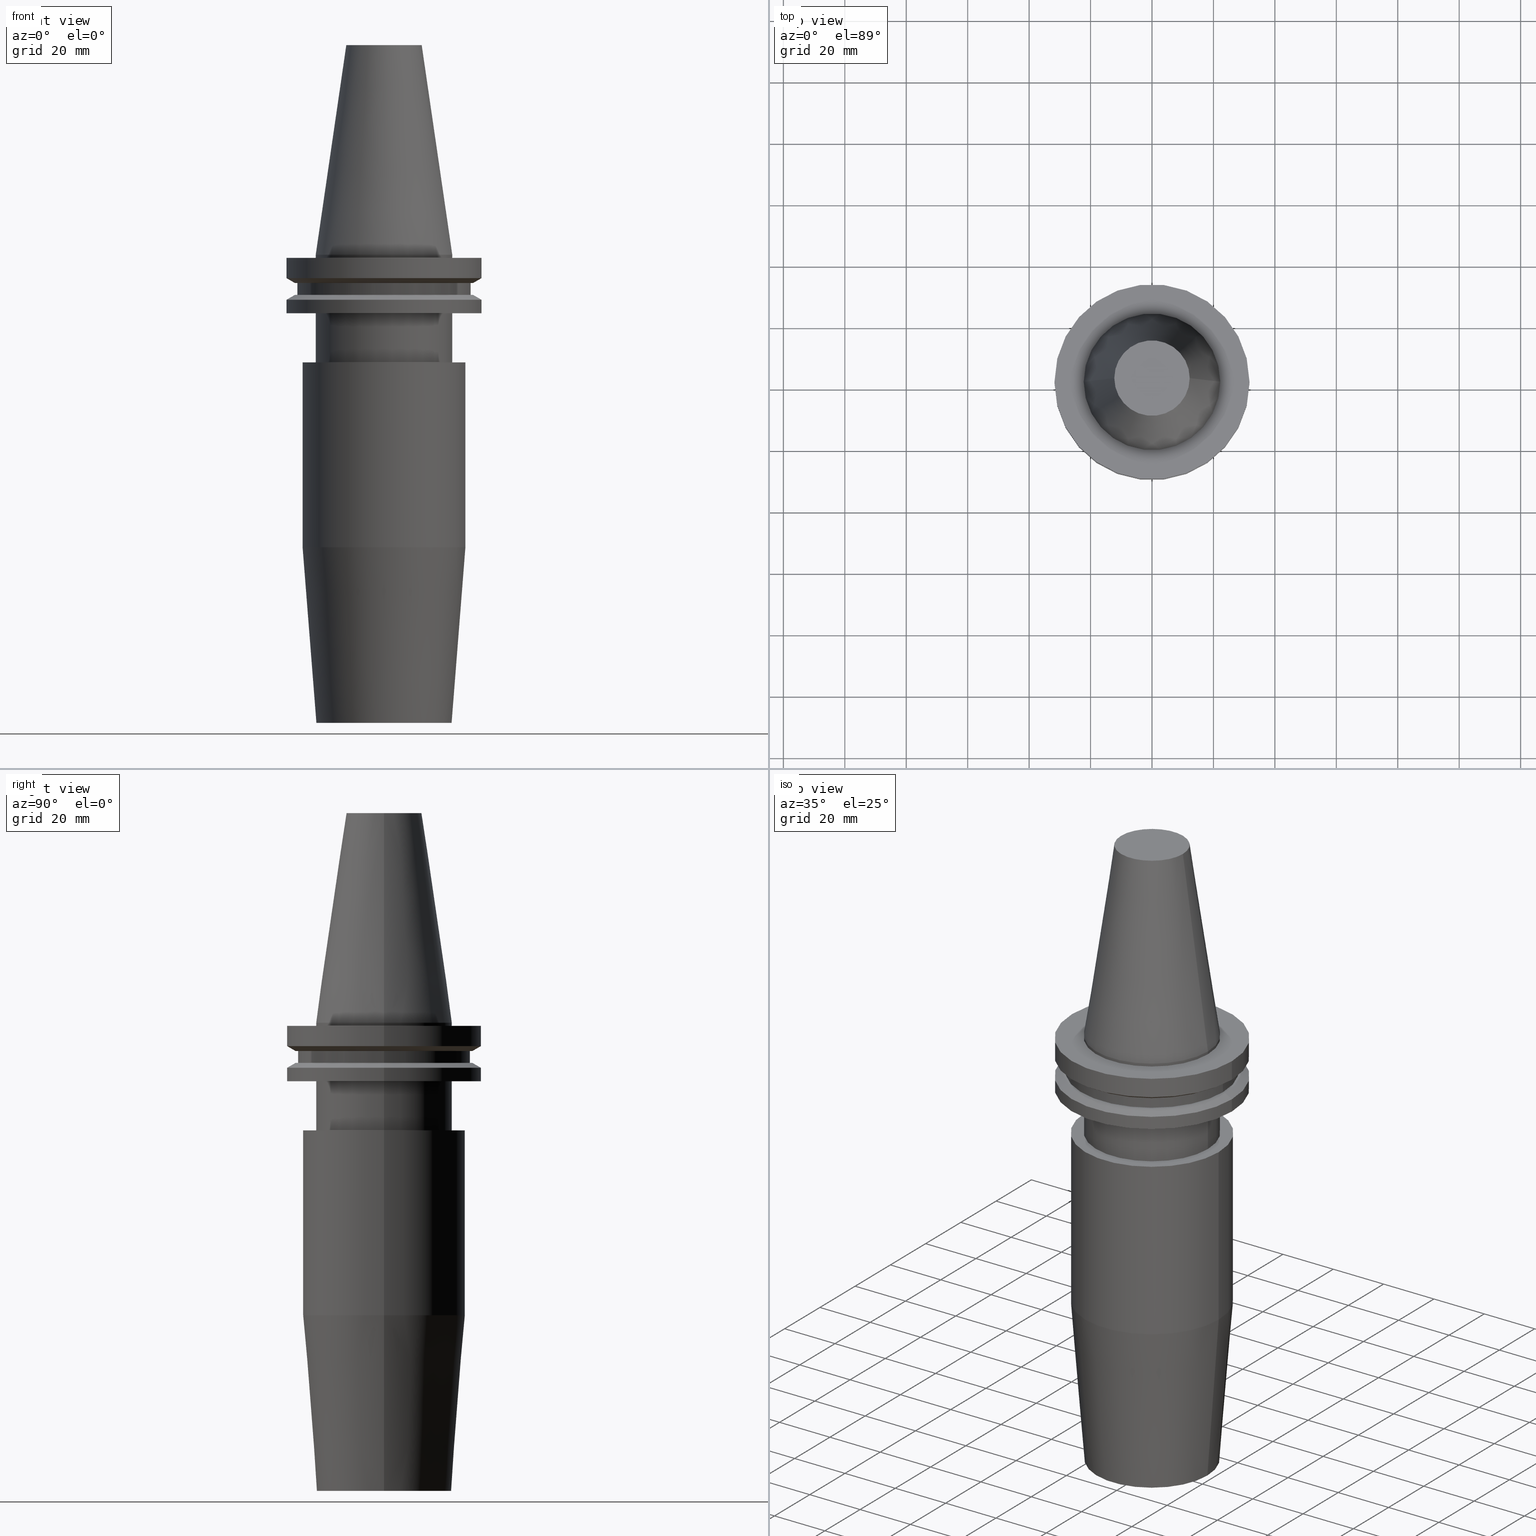
[diagram: canonical four-view strip — front | top / right | iso, engineering-drawing reading convention]
A machine part, canonical four-view strip (front | top / right | iso — engineering-drawing reading convention). The complete STEP part file that produces these views, byte-faithful:
ISO-10303-21;
HEADER;
FILE_DESCRIPTION (( 'STEP AP203' ),
    '1' );
FILE_NAME ('BCV40-SF1_000-6.stp',
    '2022-02-23T17:25:06',
    ( '' ),
    ( '' ),
    'SwSTEP 2.0',
    'SolidWorks 2021',
    '' );
FILE_SCHEMA (( 'CONFIG_CONTROL_DESIGN' ));
ENDSEC;

DATA;
#1 = DIRECTION ( 'NONE',  ( 1.000000000000000000, 0.000000000000000000, 0.000000000000000000 ) ) ;
#2 = DIRECTION ( 'NONE',  ( 1.000000000000000000, 0.000000000000000000, 0.000000000000000000 ) ) ;
#3 = EDGE_CURVE ( 'NONE', #46, #327, #703, .T. ) ;
#4 = DIRECTION ( 'NONE',  ( -0.000000000000000000, -0.000000000000000000, 1.000000000000000000 ) ) ;
#5 = CARTESIAN_POINT ( 'NONE',  ( 28.97919780457007732, 0.000000000000000000, -9.205000000000005400 ) ) ;
#6 = CIRCLE ( 'NONE', #400, 28.17999999999999972 ) ;
#7 = PRODUCT_DEFINITION_SHAPE ( 'NONE', 'NONE',  #516 ) ;
#8 = CIRCLE ( 'NONE', #347, 22.22500000000000142 ) ;
#9 = DIRECTION ( 'NONE',  ( -0.000000000000000000, -0.000000000000000000, 1.000000000000000000 ) ) ;
#10 = ADVANCED_FACE ( 'NONE', ( #95 ), #621, .F. ) ;
#11 = CARTESIAN_POINT ( 'NONE',  ( -22.22500000000000142, 0.000000000000000000, 0.000000000000000000 ) ) ;
#12 = PLANE ( 'NONE',  #111 ) ;
#13 = DIRECTION ( 'NONE',  ( -0.000000000000000000, -0.000000000000000000, 1.000000000000000000 ) ) ;
#14 = EDGE_CURVE ( 'NONE', #578, #532, #6, .T. ) ;
#15 = VERTEX_POINT ( 'NONE', #379 ) ;
#16 = EDGE_LOOP ( 'NONE', ( #574, #855 ) ) ;
#17 = FACE_BOUND ( 'NONE', #35, .T. ) ;
#18 = CYLINDRICAL_SURFACE ( 'NONE', #140, 31.75000000000000000 ) ;
#19 = EDGE_CURVE ( 'NONE', #682, #766, #795, .T. ) ;
#20 = VERTEX_POINT ( 'NONE', #641 ) ;
#21 = CIRCLE ( 'NONE', #333, 12.27178102086201150 ) ;
#22 = EDGE_LOOP ( 'NONE', ( #696, #634, #852, #324 ) ) ;
#23 = CALENDAR_DATE ( 2022, 23, 2 ) ;
#24 = CC_DESIGN_APPROVAL ( #273, ( #322 ) ) ;
#25 = DIRECTION ( 'NONE',  ( -0.000000000000000000, -0.000000000000000000, 1.000000000000000000 ) ) ;
#26 = ORIENTED_EDGE ( 'NONE', *, *, #175, .T. ) ;
#27 = DIRECTION ( 'NONE',  ( -0.000000000000000000, -0.000000000000000000, 1.000000000000000000 ) ) ;
#28 = DIRECTION ( 'NONE',  ( -0.000000000000000000, -0.000000000000000000, 1.000000000000000000 ) ) ;
#29 = EDGE_LOOP ( 'NONE', ( #652, #509, #722, #156 ) ) ;
#30 = CALENDAR_DATE ( 2022, 23, 2 ) ;
#31 = FACE_OUTER_BOUND ( 'NONE', #87, .T. ) ;
#32 = DIRECTION ( 'NONE',  ( -0.000000000000000000, -0.000000000000000000, 1.000000000000000000 ) ) ;
#33 = AXIS2_PLACEMENT_3D ( 'NONE', #382, #753, #311 ) ;
#34 = VECTOR ( 'NONE', #604, 1000.000000000000000 ) ;
#35 = EDGE_LOOP ( 'NONE', ( #535, #241 ) ) ;
#36 = PERSON_AND_ORGANIZATION ( #671, #211 ) ;
#37 = ADVANCED_FACE ( 'NONE', ( #174 ), #729, .T. ) ;
#38 = AXIS2_PLACEMENT_3D ( 'NONE', #424, #213, #745 ) ;
#39 = CARTESIAN_POINT ( 'NONE',  ( 0.000000000000000000, 0.000000000000000000, -152.4000000000000057 ) ) ;
#40 = EDGE_LOOP ( 'NONE', ( #159, #792 ) ) ;
#41 = ORIENTED_EDGE ( 'NONE', *, *, #151, .T. ) ;
#42 = APPROVAL_ROLE ( '' ) ;
#43 = DIRECTION ( 'NONE',  ( -0.000000000000000000, -0.000000000000000000, 1.000000000000000000 ) ) ;
#44 = ORIENTED_EDGE ( 'NONE', *, *, #240, .T. ) ;
#45 = ADVANCED_FACE ( 'NONE', ( #100 ), #48, .F. ) ;
#46 = VERTEX_POINT ( 'NONE', #171 ) ;
#47 = CARTESIAN_POINT ( 'NONE',  ( -31.75000000000000000, 3.888253587292846476E-15, -14.65472339340266572 ) ) ;
#48 = CYLINDRICAL_SURFACE ( 'NONE', #121, 12.70000000000000284 ) ;
#49 = VERTEX_POINT ( 'NONE', #829 ) ;
#50 = AXIS2_PLACEMENT_3D ( 'NONE', #824, #561, #112 ) ;
#51 = FACE_OUTER_BOUND ( 'NONE', #200, .T. ) ;
#52 = ADVANCED_BREP_SHAPE_REPRESENTATION ( 'BCV40-SF1_000-6', ( #554, #649 ), #251 ) ;
#53 = CARTESIAN_POINT ( 'NONE',  ( 0.000000000000000000, 0.000000000000000000, -14.65472339340266572 ) ) ;
#54 = CONICAL_SURFACE ( 'NONE', #540, 22.00000000000000000, 0.07853981633973657062 ) ;
#55 = EDGE_LOOP ( 'NONE', ( #143, #808, #332, #430 ) ) ;
#56 = CARTESIAN_POINT ( 'NONE',  ( 0.000000000000000000, 0.000000000000000000, -152.4000000000000057 ) ) ;
#57 = FACE_OUTER_BOUND ( 'NONE', #486, .T. ) ;
#58 = ORIENTED_EDGE ( 'NONE', *, *, #19, .T. ) ;
#59 = ADVANCED_FACE ( 'NONE', ( #178, #498 ), #318, .F. ) ;
#60 = CARTESIAN_POINT ( 'NONE',  ( -22.22500000000000142, 2.721777511104992849E-15, -1.000000000000000888 ) ) ;
#61 = DIRECTION ( 'NONE',  ( 1.000000000000000000, 0.000000000000000000, 0.000000000000000000 ) ) ;
#62 = EDGE_LOOP ( 'NONE', ( #512, #678, #681, #642 ) ) ;
#63 = VECTOR ( 'NONE', #598, 1000.000000000000000 ) ;
#64 = CARTESIAN_POINT ( 'NONE',  ( 0.000000000000000000, 0.000000000000000000, -152.4000000000000057 ) ) ;
#65 = ADVANCED_FACE ( 'NONE', ( #444 ), #358, .T. ) ;
#66 = DIRECTION ( 'NONE',  ( 0.1443082272672999711, 1.767266086135276757E-17, -0.9895327864921755756 ) ) ;
#67 = CIRCLE ( 'NONE', #183, 26.50000000000000000 ) ;
#68 = AXIS2_PLACEMENT_3D ( 'NONE', #689, #591, #201 ) ;
#69 = CIRCLE ( 'NONE', #785, 31.75000000000000000 ) ;
#70 = ORIENTED_EDGE ( 'NONE', *, *, #204, .T. ) ;
#71 =( LENGTH_UNIT ( ) NAMED_UNIT ( * ) SI_UNIT ( .MILLI., .METRE. ) );
#72 = CARTESIAN_POINT ( 'NONE',  ( 26.50000000000000000, 0.000000000000000000, -35.04999999999999716 ) ) ;
#73 = EDGE_CURVE ( 'NONE', #547, #612, #695, .T. ) ;
#74 = APPLICATION_CONTEXT ( 'configuration controlled 3d designs of mechanical parts and assemblies' ) ;
#75 = CARTESIAN_POINT ( 'NONE',  ( 0.000000000000000000, 31.74999999999999289, -19.04999999999999716 ) ) ;
#76 = CARTESIAN_POINT ( 'NONE',  ( 0.000000000000000000, 0.000000000000000000, -152.4000000000000057 ) ) ;
#77 = ADVANCED_FACE ( 'NONE', ( #429 ), #691, .T. ) ;
#78 = DIRECTION ( 'NONE',  ( 1.000000000000000000, 0.000000000000000000, 0.000000000000000000 ) ) ;
#79 = FACE_OUTER_BOUND ( 'NONE', #700, .T. ) ;
#80 = EDGE_CURVE ( 'NONE', #438, #97, #239, .T. ) ;
#81 = DIRECTION ( 'NONE',  ( -0.000000000000000000, -0.000000000000000000, 1.000000000000000000 ) ) ;
#82 = DIRECTION ( 'NONE',  ( 1.000000000000000000, 0.000000000000000000, 0.000000000000000000 ) ) ;
#83 = VERTEX_POINT ( 'NONE', #534 ) ;
#84 = ORIENTED_EDGE ( 'NONE', *, *, #622, .T. ) ;
#85 = DIRECTION ( 'NONE',  ( 1.000000000000000000, 0.000000000000000000, 0.000000000000000000 ) ) ;
#86 = EDGE_LOOP ( 'NONE', ( #113, #355, #248, #685 ) ) ;
#87 = EDGE_LOOP ( 'NONE', ( #777, #617 ) ) ;
#88 = DIRECTION ( 'NONE',  ( 1.000000000000000000, 0.000000000000000000, 0.000000000000000000 ) ) ;
#89 = CIRCLE ( 'NONE', #150, 22.22500000000000142 ) ;
#90 = EDGE_LOOP ( 'NONE', ( #401, #610, #380, #839 ) ) ;
#91 = VECTOR ( 'NONE', #230, 1000.000000000000000 ) ;
#92 = ORIENTED_EDGE ( 'NONE', *, *, #284, .F. ) ;
#93 = AXIS2_PLACEMENT_3D ( 'NONE', #853, #706, #518 ) ;
#94 = DIRECTION ( 'NONE',  ( -0.000000000000000000, -0.000000000000000000, 1.000000000000000000 ) ) ;
#95 = FACE_OUTER_BOUND ( 'NONE', #299, .T. ) ;
#96 = EDGE_CURVE ( 'NONE', #830, #104, #660, .T. ) ;
#97 = VERTEX_POINT ( 'NONE', #399 ) ;
#98 = APPROVAL_STATUS ( 'not_yet_approved' ) ;
#99 = CARTESIAN_POINT ( 'NONE',  ( 28.17999999999999972, 0.000000000000000000, -9.204999999999991189 ) ) ;
#100 = FACE_OUTER_BOUND ( 'NONE', #62, .T. ) ;
#101 = ORIENTED_EDGE ( 'NONE', *, *, #828, .T. ) ;
#102 = CARTESIAN_POINT ( 'NONE',  ( 0.000000000000000000, 0.000000000000000000, 0.000000000000000000 ) ) ;
#103 = CARTESIAN_POINT ( 'NONE',  ( 31.75000000000000000, 0.000000000000000000, -7.605276606597335842 ) ) ;
#104 = VERTEX_POINT ( 'NONE', #72 ) ;
#105 = CIRCLE ( 'NONE', #413, 28.97919780457008088 ) ;
#106 = ORIENTED_EDGE ( 'NONE', *, *, #448, .F. ) ;
#107 = APPROVAL_ROLE ( '' ) ;
#108 = ADVANCED_FACE ( 'NONE', ( #57 ), #783, .T. ) ;
#109 = VECTOR ( 'NONE', #496, 1000.000000000000000 ) ;
#110 = DIRECTION ( 'NONE',  ( -0.000000000000000000, -0.000000000000000000, 1.000000000000000000 ) ) ;
#111 = AXIS2_PLACEMENT_3D ( 'NONE', #75, #474, #153 ) ;
#112 = DIRECTION ( 'NONE',  ( -1.000000000000000000, 0.000000000000000000, 0.000000000000000000 ) ) ;
#113 = ORIENTED_EDGE ( 'NONE', *, *, #216, .T. ) ;
#114 = DIRECTION ( 'NONE',  ( 1.000000000000000000, 0.000000000000000000, 0.000000000000000000 ) ) ;
#115 = EDGE_CURVE ( 'NONE', #15, #719, #278, .T. ) ;
#116 = DIRECTION ( 'NONE',  ( -0.000000000000000000, -0.000000000000000000, 1.000000000000000000 ) ) ;
#117 = ORIENTED_EDGE ( 'NONE', *, *, #73, .F. ) ;
#118 = CYLINDRICAL_SURFACE ( 'NONE', #210, 28.17999999999999972 ) ;
#119 = DIRECTION ( 'NONE',  ( 1.000000000000000000, 0.000000000000000000, 0.000000000000000000 ) ) ;
#120 = ORIENTED_EDGE ( 'NONE', *, *, #14, .T. ) ;
#121 = AXIS2_PLACEMENT_3D ( 'NONE', #572, #28, #302 ) ;
#122 = CARTESIAN_POINT ( 'NONE',  ( 0.000000000000000000, 0.000000000000000000, 68.25000000000000000 ) ) ;
#123 = AXIS2_PLACEMENT_3D ( 'NONE', #698, #27, #372 ) ;
#124 = CARTESIAN_POINT ( 'NONE',  ( 0.000000000000000000, 0.000000000000000000, -14.65472339340266572 ) ) ;
#125 = CONICAL_SURFACE ( 'NONE', #633, 31.75000000000000000, 1.047197551196597853 ) ;
#126 = EDGE_CURVE ( 'NONE', #662, #394, #754, .T. ) ;
#127 = ORIENTED_EDGE ( 'NONE', *, *, #371, .T. ) ;
#128 = DIRECTION ( 'NONE',  ( -0.000000000000000000, -0.000000000000000000, 1.000000000000000000 ) ) ;
#129 = LINE ( 'NONE', #715, #835 ) ;
#130 = ORIENTED_EDGE ( 'NONE', *, *, #690, .F. ) ;
#131 = CARTESIAN_POINT ( 'NONE',  ( 0.000000000000000000, 0.000000000000000000, -35.04999999999999716 ) ) ;
#132 = CARTESIAN_POINT ( 'NONE',  ( 0.000000000000000000, 0.000000000000000000, 0.000000000000000000 ) ) ;
#133 = UNCERTAINTY_MEASURE_WITH_UNIT (LENGTH_MEASURE( 1.000000000000000082E-05 ), #71, 'distance_accuracy_value', 'NONE');
#134 = APPLICATION_CONTEXT ( 'configuration controlled 3d designs of mechanical parts and assemblies' ) ;
#135 = ORIENTED_EDGE ( 'NONE', *, *, #3, .F. ) ;
#136 = AXIS2_PLACEMENT_3D ( 'NONE', #456, #666, #335 ) ;
#137 = VECTOR ( 'NONE', #209, 1000.000000000000000 ) ;
#138 = EDGE_CURVE ( 'NONE', #557, #360, #659, .T. ) ;
#139 = DIRECTION ( 'NONE',  ( -0.1443082272672999711, 0.000000000000000000, -0.9895327864921755756 ) ) ;
#140 = AXIS2_PLACEMENT_3D ( 'NONE', #292, #734, #683 ) ;
#141 = VECTOR ( 'NONE', #462, 1000.000000000000000 ) ;
#142 = APPROVAL_PERSON_ORGANIZATION ( #816, #814, #42 ) ;
#143 = ORIENTED_EDGE ( 'NONE', *, *, #371, .F. ) ;
#144 = FACE_OUTER_BOUND ( 'NONE', #813, .T. ) ;
#145 = CARTESIAN_POINT ( 'NONE',  ( 0.000000000000000000, 28.17999999999999972, -13.05499999999999794 ) ) ;
#146 = DIRECTION ( 'NONE',  ( -1.000000000000000000, 0.000000000000000000, 0.000000000000000000 ) ) ;
#147 = CYLINDRICAL_SURFACE ( 'NONE', #38, 31.75000000000000000 ) ;
#148 = CARTESIAN_POINT ( 'NONE',  ( 0.000000000000000000, 0.000000000000000000, 68.25000000000000000 ) ) ;
#149 = DIRECTION ( 'NONE',  ( 0.000000000000000000, 0.000000000000000000, -1.000000000000000000 ) ) ;
#150 = AXIS2_PLACEMENT_3D ( 'NONE', #405, #254, #593 ) ;
#151 = EDGE_CURVE ( 'NONE', #461, #15, #129, .T. ) ;
#152 = CIRCLE ( 'NONE', #268, 12.69999999999999929 ) ;
#153 = DIRECTION ( 'NONE',  ( 1.000000000000000000, 0.000000000000000000, 0.000000000000000000 ) ) ;
#154 = CYLINDRICAL_SURFACE ( 'NONE', #167, 26.50000000000000000 ) ;
#155 = EDGE_LOOP ( 'NONE', ( #120, #397 ) ) ;
#156 = ORIENTED_EDGE ( 'NONE', *, *, #310, .F. ) ;
#157 = PERSON_AND_ORGANIZATION_ROLE ( 'classification_officer' ) ;
#158 = FACE_OUTER_BOUND ( 'NONE', #29, .T. ) ;
#159 = ORIENTED_EDGE ( 'NONE', *, *, #194, .F. ) ;
#160 = ORIENTED_EDGE ( 'NONE', *, *, #263, .F. ) ;
#161 = CARTESIAN_POINT ( 'NONE',  ( 0.000000000000000000, 0.000000000000000000, 68.25000000000000000 ) ) ;
#162 = EDGE_CURVE ( 'NONE', #320, #312, #396, .T. ) ;
#163 = AXIS2_PLACEMENT_3D ( 'NONE', #626, #32, #638 ) ;
#164 = DIRECTION ( 'NONE',  ( 1.000000000000000000, 0.000000000000000000, 0.000000000000000000 ) ) ;
#165 = AXIS2_PLACEMENT_3D ( 'NONE', #145, #149, #676 ) ;
#166 = PRODUCT ( 'BCV40-SF1_000-6', 'BCV40-SF1_000-6', '', ( #563 ) ) ;
#167 = AXIS2_PLACEMENT_3D ( 'NONE', #346, #602, #364 ) ;
#168 = PERSON_AND_ORGANIZATION_ROLE ( 'design_supplier' ) ;
#169 = SECURITY_CLASSIFICATION ( '', '', #357 ) ;
#170 = CARTESIAN_POINT ( 'NONE',  ( 0.000000000000000000, 0.000000000000000000, -19.04999999999999716 ) ) ;
#171 = CARTESIAN_POINT ( 'NONE',  ( -22.00000000000000000, 2.969768487932331287E-15, -152.4000000000000057 ) ) ;
#172 = DATE_TIME_ROLE ( 'creation_date' ) ;
#173 = DIRECTION ( 'NONE',  ( -0.000000000000000000, -0.000000000000000000, 1.000000000000000000 ) ) ;
#174 = FACE_OUTER_BOUND ( 'NONE', #375, .T. ) ;
#175 = EDGE_CURVE ( 'NONE', #623, #327, #388, .T. ) ;
#176 = APPROVAL_STATUS ( 'not_yet_approved' ) ;
#177 = DIRECTION ( 'NONE',  ( 1.000000000000000000, 0.000000000000000000, 0.000000000000000000 ) ) ;
#178 = FACE_OUTER_BOUND ( 'NONE', #746, .T. ) ;
#179 = AXIS2_PLACEMENT_3D ( 'NONE', #132, #728, #190 ) ;
#180 = CIRCLE ( 'NONE', #701, 22.00000000000000000 ) ;
#181 = ORIENTED_EDGE ( 'NONE', *, *, #115, .T. ) ;
#182 = CC_DESIGN_DATE_AND_TIME_ASSIGNMENT ( #376, #555, ( #169 ) ) ;
#183 = AXIS2_PLACEMENT_3D ( 'NONE', #843, #521, #654 ) ;
#184 = CIRCLE ( 'NONE', #704, 22.22500000000000142 ) ;
#185 = CARTESIAN_POINT ( 'NONE',  ( 0.000000000000000000, 0.000000000000000000, -13.05499999999999794 ) ) ;
#186 = AXIS2_PLACEMENT_3D ( 'NONE', #549, #679, #608 ) ;
#187 = CARTESIAN_POINT ( 'NONE',  ( 0.000000000000000000, 0.000000000000000000, -9.204999999999991189 ) ) ;
#188 = VERTEX_POINT ( 'NONE', #330 ) ;
#189 = CARTESIAN_POINT ( 'NONE',  ( 0.000000000000000000, 0.000000000000000000, -1.000000000000000888 ) ) ;
#190 = DIRECTION ( 'NONE',  ( -1.000000000000000000, 0.000000000000000000, 0.000000000000000000 ) ) ;
#191 = ORIENTED_EDGE ( 'NONE', *, *, #804, .T. ) ;
#192 = DIRECTION ( 'NONE',  ( 1.000000000000000000, 0.000000000000000000, 0.000000000000000000 ) ) ;
#193 = CARTESIAN_POINT ( 'NONE',  ( -31.75000000000000000, 0.000000000000000000, -14.65472339340266572 ) ) ;
#194 = EDGE_CURVE ( 'NONE', #461, #83, #265, .T. ) ;
#195 = EDGE_LOOP ( 'NONE', ( #246, #656 ) ) ;
#196 = CONICAL_SURFACE ( 'NONE', #511, 28.97919780457007732, 1.047197551196598297 ) ;
#197 = DIRECTION ( 'NONE',  ( 0.000000000000000000, 0.000000000000000000, -1.000000000000000000 ) ) ;
#198 = DIRECTION ( 'NONE',  ( -0.000000000000000000, -0.000000000000000000, 1.000000000000000000 ) ) ;
#199 = AXIS2_PLACEMENT_3D ( 'NONE', #214, #407, #738 ) ;
#200 = EDGE_LOOP ( 'NONE', ( #84, #207 ) ) ;
#201 = DIRECTION ( 'NONE',  ( 1.000000000000000000, 0.000000000000000000, 0.000000000000000000 ) ) ;
#202 = DIRECTION ( 'NONE',  ( -0.000000000000000000, -0.000000000000000000, 1.000000000000000000 ) ) ;
#203 = EDGE_LOOP ( 'NONE', ( #726, #548, #515, #751 ) ) ;
#204 = EDGE_CURVE ( 'NONE', #289, #15, #206, .T. ) ;
#205 = LINE ( 'NONE', #584, #223 ) ;
#206 = LINE ( 'NONE', #581, #344 ) ;
#207 = ORIENTED_EDGE ( 'NONE', *, *, #96, .T. ) ;
#208 = DIRECTION ( 'NONE',  ( 1.000000000000000000, 0.000000000000000000, 0.000000000000000000 ) ) ;
#209 = DIRECTION ( 'NONE',  ( -0.000000000000000000, -0.000000000000000000, 1.000000000000000000 ) ) ;
#210 = AXIS2_PLACEMENT_3D ( 'NONE', #122, #325, #114 ) ;
#211 = ORGANIZATION ( 'UNSPECIFIED', 'UNSPECIFIED', '' ) ;
#212 = CARTESIAN_POINT ( 'NONE',  ( -31.75000000000000000, 3.888253587292846476E-15, -7.605276606597335842 ) ) ;
#213 = DIRECTION ( 'NONE',  ( -0.000000000000000000, -0.000000000000000000, 1.000000000000000000 ) ) ;
#214 = CARTESIAN_POINT ( 'NONE',  ( 0.000000000000000000, 0.000000000000000000, -35.04999999999999716 ) ) ;
#215 = CARTESIAN_POINT ( 'NONE',  ( 0.000000000000000000, 22.00000000000000000, -152.4000000000000057 ) ) ;
#216 = EDGE_CURVE ( 'NONE', #20, #188, #673, .T. ) ;
#217 = CARTESIAN_POINT ( 'NONE',  ( 0.000000000000000000, 0.000000000000000000, -7.605276606597335842 ) ) ;
#218 = DIRECTION ( 'NONE',  ( 1.000000000000000000, 0.000000000000000000, 0.000000000000000000 ) ) ;
#219 = CIRCLE ( 'NONE', #796, 31.75000000000000000 ) ;
#220 = AXIS2_PLACEMENT_3D ( 'NONE', #611, #13, #82 ) ;
#221 = ORIENTED_EDGE ( 'NONE', *, *, #138, .F. ) ;
#222 = CIRCLE ( 'NONE', #811, 31.74999999999999289 ) ;
#223 = VECTOR ( 'NONE', #787, 1000.000000000000000 ) ;
#224 = COORDINATED_UNIVERSAL_TIME_OFFSET ( 6, 0, .BEHIND. ) ;
#225 = CARTESIAN_POINT ( 'NONE',  ( 0.000000000000000000, 0.000000000000000000, 68.25000000000000000 ) ) ;
#226 = ORIENTED_EDGE ( 'NONE', *, *, #833, .F. ) ;
#227 = VERTEX_POINT ( 'NONE', #262 ) ;
#228 = EDGE_CURVE ( 'NONE', #360, #768, #89, .T. ) ;
#229 = APPROVAL_DATE_TIME ( #423, #814 ) ;
#230 = DIRECTION ( 'NONE',  ( -0.8660254037844389297, 1.060575238724907285E-16, 0.4999999999999995004 ) ) ;
#231 = CARTESIAN_POINT ( 'NONE',  ( 12.70000000000000284, 0.000000000000000000, 0.000000000000000000 ) ) ;
#232 = PERSON_AND_ORGANIZATION_ROLE ( 'creator' ) ;
#233 = CYLINDRICAL_SURFACE ( 'NONE', #445, 28.17999999999999972 ) ;
#234 = VECTOR ( 'NONE', #66, 999.9999999999998863 ) ;
#235 = EDGE_LOOP ( 'NONE', ( #712, #58, #421, #815 ) ) ;
#236 = VECTOR ( 'NONE', #576, 1000.000000000000000 ) ;
#237 = PERSON_AND_ORGANIZATION ( #671, #211 ) ;
#238 = LINE ( 'NONE', #314, #236 ) ;
#239 = LINE ( 'NONE', #589, #234 ) ;
#240 = EDGE_CURVE ( 'NONE', #289, #416, #105, .T. ) ;
#241 = ORIENTED_EDGE ( 'NONE', *, *, #228, .T. ) ;
#242 = COORDINATED_UNIVERSAL_TIME_OFFSET ( 6, 0, .BEHIND. ) ;
#243 = DIRECTION ( 'NONE',  ( -1.000000000000000000, 0.000000000000000000, -0.000000000000000000 ) ) ;
#244 = ORIENTED_EDGE ( 'NONE', *, *, #674, .T. ) ;
#245 = EDGE_CURVE ( 'NONE', #586, #490, #628, .T. ) ;
#246 = ORIENTED_EDGE ( 'NONE', *, *, #850, .F. ) ;
#247 = LINE ( 'NONE', #556, #307 ) ;
#248 = ORIENTED_EDGE ( 'NONE', *, *, #14, .F. ) ;
#249 = ORIENTED_EDGE ( 'NONE', *, *, #19, .F. ) ;
#250 = CIRCLE ( 'NONE', #513, 12.70000000000000639 ) ;
#251 =( GEOMETRIC_REPRESENTATION_CONTEXT ( 3 ) GLOBAL_UNCERTAINTY_ASSIGNED_CONTEXT ( ( #133 ) ) GLOBAL_UNIT_ASSIGNED_CONTEXT ( ( #71, #290, #300 ) ) REPRESENTATION_CONTEXT ( 'NONE', 'WORKASPACE' ) );
#252 = DIRECTION ( 'NONE',  ( -1.000000000000000000, 0.000000000000000000, -0.000000000000000000 ) ) ;
#253 = CC_DESIGN_SECURITY_CLASSIFICATION ( #169, ( #322 ) ) ;
#254 = DIRECTION ( 'NONE',  ( -0.000000000000000000, -0.000000000000000000, 1.000000000000000000 ) ) ;
#255 = ORIENTED_EDGE ( 'NONE', *, *, #587, .F. ) ;
#256 = EDGE_CURVE ( 'NONE', #719, #15, #741, .T. ) ;
#257 = CARTESIAN_POINT ( 'NONE',  ( 0.000000000000000000, 0.000000000000000000, -152.4000000000000057 ) ) ;
#258 = DIRECTION ( 'NONE',  ( 0.07845909572783671404, 0.000000000000000000, 0.9969173337331286300 ) ) ;
#259 = ORIENTED_EDGE ( 'NONE', *, *, #587, .T. ) ;
#260 = DIRECTION ( 'NONE',  ( 1.000000000000000000, 0.000000000000000000, 0.000000000000000000 ) ) ;
#261 = PRODUCT_RELATED_PRODUCT_CATEGORY ( 'detail', '', ( #166 ) ) ;
#262 = CARTESIAN_POINT ( 'NONE',  ( 22.22499999999999787, 0.000000000000000000, -35.04999999999999716 ) ) ;
#263 = EDGE_CURVE ( 'NONE', #416, #719, #467, .T. ) ;
#264 = EDGE_LOOP ( 'NONE', ( #221, #270, #259, #433 ) ) ;
#265 = CIRCLE ( 'NONE', #714, 31.74999999999999289 ) ;
#266 = FACE_OUTER_BOUND ( 'NONE', #195, .T. ) ;
#267 = DIRECTION ( 'NONE',  ( -0.000000000000000000, -0.000000000000000000, 1.000000000000000000 ) ) ;
#268 = AXIS2_PLACEMENT_3D ( 'NONE', #410, #793, #78 ) ;
#269 = ADVANCED_FACE ( 'NONE', ( #272 ), #373, .T. ) ;
#270 = ORIENTED_EDGE ( 'NONE', *, *, #762, .T. ) ;
#271 = PLANE ( 'NONE',  #661 ) ;
#272 = FACE_OUTER_BOUND ( 'NONE', #55, .T. ) ;
#273 = APPROVAL ( #575, 'UNSPECIFIED' ) ;
#274 = ORIENTED_EDGE ( 'NONE', *, *, #546, .T. ) ;
#275 = CARTESIAN_POINT ( 'NONE',  ( 22.22500000000000142, 0.000000000000000000, -19.04999999999999716 ) ) ;
#276 = CARTESIAN_POINT ( 'NONE',  ( 28.97919780457008088, 3.718590885307660666E-15, -13.05499999999999794 ) ) ;
#277 = DESIGN_CONTEXT ( 'detailed design', #74, 'design' ) ;
#278 = CIRCLE ( 'NONE', #527, 31.75000000000000000 ) ;
#279 = CARTESIAN_POINT ( 'NONE',  ( 0.000000000000000000, 0.000000000000000000, -95.22207868720779800 ) ) ;
#280 = FACE_BOUND ( 'NONE', #699, .T. ) ;
#281 = CIRCLE ( 'NONE', #756, 28.17999999999999972 ) ;
#282 = APPROVAL_PERSON_ORGANIZATION ( #313, #273, #107 ) ;
#283 = CARTESIAN_POINT ( 'NONE',  ( 0.000000000000000000, 0.000000000000000000, 0.000000000000000000 ) ) ;
#284 = EDGE_CURVE ( 'NONE', #825, #623, #710, .T. ) ;
#285 = DIRECTION ( 'NONE',  ( -0.000000000000000000, -0.000000000000000000, 1.000000000000000000 ) ) ;
#286 = DIRECTION ( 'NONE',  ( 1.000000000000000000, 0.000000000000000000, 0.000000000000000000 ) ) ;
#287 = LINE ( 'NONE', #408, #137 ) ;
#288 = CC_DESIGN_PERSON_AND_ORGANIZATION_ASSIGNMENT ( #36, #505, ( #322 ) ) ;
#289 = VERTEX_POINT ( 'NONE', #276 ) ;
#290 =( NAMED_UNIT ( * ) PLANE_ANGLE_UNIT ( ) SI_UNIT ( $, .RADIAN. ) );
#291 = AXIS2_PLACEMENT_3D ( 'NONE', #655, #519, #61 ) ;
#292 = CARTESIAN_POINT ( 'NONE',  ( 0.000000000000000000, 0.000000000000000000, 68.25000000000000000 ) ) ;
#293 = ORIENTED_EDGE ( 'NONE', *, *, #674, .F. ) ;
#294 = AXIS2_PLACEMENT_3D ( 'NONE', #643, #398, #846 ) ;
#295 = ADVANCED_FACE ( 'NONE', ( #481 ), #669, .T. ) ;
#296 = CALENDAR_DATE ( 2022, 23, 2 ) ;
#297 = DIRECTION ( 'NONE',  ( 1.000000000000000000, 0.000000000000000000, 0.000000000000000000 ) ) ;
#298 = EDGE_LOOP ( 'NONE', ( #338, #274, #499, #130 ) ) ;
#299 = EDGE_LOOP ( 'NONE', ( #244, #127 ) ) ;
#300 =( NAMED_UNIT ( * ) SI_UNIT ( $, .STERADIAN. ) SOLID_ANGLE_UNIT ( ) );
#301 = PLANE ( 'NONE',  #482 ) ;
#302 = DIRECTION ( 'NONE',  ( 1.000000000000000000, 0.000000000000000000, 0.000000000000000000 ) ) ;
#303 = ORIENTED_EDGE ( 'NONE', *, *, #619, .T. ) ;
#304 = DATE_AND_TIME ( #23, #542 ) ;
#305 = CARTESIAN_POINT ( 'NONE',  ( 12.70000000000000639, 0.000000000000000000, -152.4000000000000057 ) ) ;
#306 = CARTESIAN_POINT ( 'NONE',  ( -22.00000000000000000, 2.694222958124176809E-15, -152.4000000000000057 ) ) ;
#307 = VECTOR ( 'NONE', #43, 1000.000000000000000 ) ;
#308 = ORIENTED_EDGE ( 'NONE', *, *, #592, .T. ) ;
#309 = CARTESIAN_POINT ( 'NONE',  ( 0.000000000000000000, 0.000000000000000000, 68.25000000000000000 ) ) ;
#310 = EDGE_CURVE ( 'NONE', #490, #586, #219, .T. ) ;
#311 = DIRECTION ( 'NONE',  ( -1.000000000000000000, 0.000000000000000000, -0.000000000000000000 ) ) ;
#312 = VERTEX_POINT ( 'NONE', #11 ) ;
#313 = PERSON_AND_ORGANIZATION ( #671, #211 ) ;
#314 = CARTESIAN_POINT ( 'NONE',  ( -26.50000000000000000, 3.245314017740485765E-15, 0.000000000000000000 ) ) ;
#315 = ORIENTED_EDGE ( 'NONE', *, *, #175, .F. ) ;
#316 = ORIENTED_EDGE ( 'NONE', *, *, #204, .F. ) ;
#317 = CARTESIAN_POINT ( 'NONE',  ( 0.000000000000000000, 0.000000000000000000, -9.205000000000005400 ) ) ;
#318 = PLANE ( 'NONE',  #565 ) ;
#319 = EDGE_CURVE ( 'NONE', #46, #825, #180, .T. ) ;
#320 = VERTEX_POINT ( 'NONE', #803 ) ;
#321 = DIRECTION ( 'NONE',  ( 1.000000000000000000, 0.000000000000000000, 0.000000000000000000 ) ) ;
#322 = PRODUCT_DEFINITION_FORMATION_WITH_SPECIFIED_SOURCE ( 'ANY', '', #166, .NOT_KNOWN. ) ;
#323 = DIRECTION ( 'NONE',  ( -0.000000000000000000, -0.000000000000000000, 1.000000000000000000 ) ) ;
#324 = ORIENTED_EDGE ( 'NONE', *, *, #151, .F. ) ;
#325 = DIRECTION ( 'NONE',  ( -0.000000000000000000, -0.000000000000000000, 1.000000000000000000 ) ) ;
#326 = DIRECTION ( 'NONE',  ( 1.000000000000000000, 0.000000000000000000, 0.000000000000000000 ) ) ;
#327 = VERTEX_POINT ( 'NONE', #680 ) ;
#328 = LINE ( 'NONE', #782, #141 ) ;
#329 = ADVANCED_FACE ( 'NONE', ( #280, #607 ), #353, .F. ) ;
#330 = CARTESIAN_POINT ( 'NONE',  ( -28.17999999999999972, 3.451054679997241634E-15, -13.05499999999999794 ) ) ;
#331 = AXIS2_PLACEMENT_3D ( 'NONE', #393, #531, #844 ) ;
#332 = ORIENTED_EDGE ( 'NONE', *, *, #418, .T. ) ;
#333 = AXIS2_PLACEMENT_3D ( 'NONE', #225, #544, #736 ) ;
#334 = DIRECTION ( 'NONE',  ( -0.000000000000000000, -0.000000000000000000, 1.000000000000000000 ) ) ;
#335 = DIRECTION ( 'NONE',  ( 1.000000000000000000, 0.000000000000000000, 0.000000000000000000 ) ) ;
#336 = CC_DESIGN_PERSON_AND_ORGANIZATION_ASSIGNMENT ( #570, #168, ( #322 ) ) ;
#337 = AXIS2_PLACEMENT_3D ( 'NONE', #802, #414, #605 ) ;
#338 = ORIENTED_EDGE ( 'NONE', *, *, #658, .T. ) ;
#339 = DIRECTION ( 'NONE',  ( 1.000000000000000000, 0.000000000000000000, 0.000000000000000000 ) ) ;
#340 = DIRECTION ( 'NONE',  ( -0.000000000000000000, -0.000000000000000000, 1.000000000000000000 ) ) ;
#341 = CYLINDRICAL_SURFACE ( 'NONE', #838, 22.22500000000000142 ) ;
#342 = FACE_OUTER_BOUND ( 'NONE', #693, .T. ) ;
#343 = ADVANCED_FACE ( 'NONE', ( #538 ), #196, .T. ) ;
#344 = VECTOR ( 'NONE', #460, 1000.000000000000000 ) ;
#345 = CARTESIAN_POINT ( 'NONE',  ( 22.22500000000000142, 0.000000000000000000, -1.000000000000000888 ) ) ;
#346 = CARTESIAN_POINT ( 'NONE',  ( 0.000000000000000000, 0.000000000000000000, 0.000000000000000000 ) ) ;
#347 = AXIS2_PLACEMENT_3D ( 'NONE', #672, #340, #478 ) ;
#348 = CONICAL_SURFACE ( 'NONE', #732, 22.00000000000000000, 0.07853981633973657062 ) ;
#349 = DIRECTION ( 'NONE',  ( 1.000000000000000000, 0.000000000000000000, 0.000000000000000000 ) ) ;
#350 = EDGE_CURVE ( 'NONE', #552, #586, #801, .T. ) ;
#351 = CARTESIAN_POINT ( 'NONE',  ( 31.75000000000000000, 0.000000000000000000, 68.25000000000000000 ) ) ;
#352 = ORIENTED_EDGE ( 'NONE', *, *, #126, .T. ) ;
#353 = PLANE ( 'NONE',  #165 ) ;
#354 = EDGE_CURVE ( 'NONE', #394, #662, #848, .T. ) ;
#355 = ORIENTED_EDGE ( 'NONE', *, *, #497, .T. ) ;
#356 = ORIENTED_EDGE ( 'NONE', *, *, #96, .F. ) ;
#357 = SECURITY_CLASSIFICATION_LEVEL ( 'unclassified' ) ;
#358 = CONICAL_SURFACE ( 'NONE', #50, 31.75000000000000000, 1.047197551196597853 ) ;
#359 = CARTESIAN_POINT ( 'NONE',  ( 12.69999999999999929, 0.000000000000000000, -105.4000000000000057 ) ) ;
#360 = VERTEX_POINT ( 'NONE', #472 ) ;
#361 = AXIS2_PLACEMENT_3D ( 'NONE', #64, #128, #385 ) ;
#362 = AXIS2_PLACEMENT_3D ( 'NONE', #539, #81, #286 ) ;
#363 = ORIENTED_EDGE ( 'NONE', *, *, #774, .F. ) ;
#364 = DIRECTION ( 'NONE',  ( 1.000000000000000000, 0.000000000000000000, 0.000000000000000000 ) ) ;
#365 = DIRECTION ( 'NONE',  ( 0.000000000000000000, 0.000000000000000000, -1.000000000000000000 ) ) ;
#366 = ORIENTED_EDGE ( 'NONE', *, *, #559, .T. ) ;
#367 = APPROVAL_DATE_TIME ( #749, #485 ) ;
#368 = CARTESIAN_POINT ( 'NONE',  ( 31.75000000000000000, 0.000000000000000000, -1.000000000000000888 ) ) ;
#369 = DIRECTION ( 'NONE',  ( -0.000000000000000000, -0.000000000000000000, 1.000000000000000000 ) ) ;
#370 = EDGE_LOOP ( 'NONE', ( #451, #249 ) ) ;
#371 = EDGE_CURVE ( 'NONE', #438, #320, #21, .T. ) ;
#372 = DIRECTION ( 'NONE',  ( 1.000000000000000000, 0.000000000000000000, 0.000000000000000000 ) ) ;
#373 = CONICAL_SURFACE ( 'NONE', #179, 22.22500000000000142, 0.1448138465474119174 ) ;
#374 = ORIENTED_EDGE ( 'NONE', *, *, #256, .T. ) ;
#375 = EDGE_LOOP ( 'NONE', ( #457, #293, #595, #101 ) ) ;
#376 = DATE_AND_TIME ( #296, #406 ) ;
#377 = AXIS2_PLACEMENT_3D ( 'NONE', #189, #334, #321 ) ;
#378 = DIRECTION ( 'NONE',  ( -0.000000000000000000, -0.000000000000000000, 1.000000000000000000 ) ) ;
#379 = CARTESIAN_POINT ( 'NONE',  ( 31.75000000000000000, 0.000000000000000000, -14.65472339340266572 ) ) ;
#380 = ORIENTED_EDGE ( 'NONE', *, *, #245, .F. ) ;
#381 = FACE_OUTER_BOUND ( 'NONE', #520, .T. ) ;
#382 = CARTESIAN_POINT ( 'NONE',  ( 0.000000000000000000, 12.27178102086201150, 68.25000000000000000 ) ) ;
#383 = EDGE_CURVE ( 'NONE', #83, #719, #287, .T. ) ;
#384 = VERTEX_POINT ( 'NONE', #545 ) ;
#385 = DIRECTION ( 'NONE',  ( 1.000000000000000000, 0.000000000000000000, 0.000000000000000000 ) ) ;
#386 = DIRECTION ( 'NONE',  ( 1.000000000000000000, 0.000000000000000000, 0.000000000000000000 ) ) ;
#387 = ADVANCED_FACE ( 'NONE', ( #342 ), #18, .T. ) ;
#388 = CIRCLE ( 'NONE', #291, 26.50000000000000000 ) ;
#389 = ORIENTED_EDGE ( 'NONE', *, *, #216, .F. ) ;
#390 = VECTOR ( 'NONE', #510, 1000.000000000000000 ) ;
#391 = VECTOR ( 'NONE', #742, 1000.000000000000000 ) ;
#392 = PLANE ( 'NONE',  #294 ) ;
#393 = CARTESIAN_POINT ( 'NONE',  ( 0.000000000000000000, 0.000000000000000000, -9.205000000000005400 ) ) ;
#394 = VERTEX_POINT ( 'NONE', #5 ) ;
#395 = CARTESIAN_POINT ( 'NONE',  ( 0.000000000000000000, 0.000000000000000000, 68.25000000000000000 ) ) ;
#396 = LINE ( 'NONE', #525, #468 ) ;
#397 = ORIENTED_EDGE ( 'NONE', *, *, #599, .T. ) ;
#398 = DIRECTION ( 'NONE',  ( 0.000000000000000000, -0.000000000000000000, 1.000000000000000000 ) ) ;
#399 = CARTESIAN_POINT ( 'NONE',  ( 22.22500000000000142, 2.721777511104992849E-15, 0.000000000000000000 ) ) ;
#400 = AXIS2_PLACEMENT_3D ( 'NONE', #187, #503, #450 ) ;
#401 = ORIENTED_EDGE ( 'NONE', *, *, #748, .T. ) ;
#402 = LINE ( 'NONE', #477, #664 ) ;
#403 = CIRCLE ( 'NONE', #361, 12.70000000000000639 ) ;
#404 = CONICAL_SURFACE ( 'NONE', #616, 28.97919780457007732, 1.047197551196598297 ) ;
#405 = CARTESIAN_POINT ( 'NONE',  ( 0.000000000000000000, 0.000000000000000000, -19.04999999999999716 ) ) ;
#406 = LOCAL_TIME ( 11, 25, 6.000000000000000000, #764 ) ;
#407 = DIRECTION ( 'NONE',  ( -0.000000000000000000, -0.000000000000000000, 1.000000000000000000 ) ) ;
#408 = CARTESIAN_POINT ( 'NONE',  ( -31.75000000000000000, 3.888253587292846476E-15, 68.25000000000000000 ) ) ;
#409 = ADVANCED_FACE ( 'NONE', ( #794, #488 ), #812, .F. ) ;
#410 = CARTESIAN_POINT ( 'NONE',  ( 0.000000000000000000, 0.000000000000000000, -105.4000000000000057 ) ) ;
#411 = CARTESIAN_POINT ( 'NONE',  ( -28.97919780457008088, 0.000000000000000000, -13.05499999999999794 ) ) ;
#412 = ADVANCED_FACE ( 'NONE', ( #158 ), #147, .T. ) ;
#413 = AXIS2_PLACEMENT_3D ( 'NONE', #854, #849, #119 ) ;
#414 = DIRECTION ( 'NONE',  ( -0.000000000000000000, -0.000000000000000000, 1.000000000000000000 ) ) ;
#415 = DIRECTION ( 'NONE',  ( -0.000000000000000000, -0.000000000000000000, 1.000000000000000000 ) ) ;
#416 = VERTEX_POINT ( 'NONE', #411 ) ;
#417 = CIRCLE ( 'NONE', #186, 22.22499999999999787 ) ;
#418 = EDGE_CURVE ( 'NONE', #97, #312, #8, .T. ) ;
#419 = DIRECTION ( 'NONE',  ( -0.000000000000000000, -0.000000000000000000, 1.000000000000000000 ) ) ;
#420 = DIRECTION ( 'NONE',  ( 1.000000000000000000, 0.000000000000000000, 0.000000000000000000 ) ) ;
#421 = ORIENTED_EDGE ( 'NONE', *, *, #690, .T. ) ;
#422 = ORIENTED_EDGE ( 'NONE', *, *, #126, .F. ) ;
#423 = DATE_AND_TIME ( #487, #473 ) ;
#424 = CARTESIAN_POINT ( 'NONE',  ( 0.000000000000000000, 0.000000000000000000, 68.25000000000000000 ) ) ;
#425 = EDGE_LOOP ( 'NONE', ( #677, #70, #181, #160 ) ) ;
#426 = APPROVAL_DATE_TIME ( #304, #273 ) ;
#427 = AXIS2_PLACEMENT_3D ( 'NONE', #567, #365, #631 ) ;
#428 = LINE ( 'NONE', #560, #109 ) ;
#429 = FACE_OUTER_BOUND ( 'NONE', #90, .T. ) ;
#430 = ORIENTED_EDGE ( 'NONE', *, *, #162, .F. ) ;
#431 = COORDINATED_UNIVERSAL_TIME_OFFSET ( 6, 0, .BEHIND. ) ;
#432 = DIRECTION ( 'NONE',  ( 1.000000000000000000, 0.000000000000000000, 0.000000000000000000 ) ) ;
#433 = ORIENTED_EDGE ( 'NONE', *, *, #228, .F. ) ;
#434 = ADVANCED_FACE ( 'NONE', ( #79 ), #154, .T. ) ;
#435 = ORIENTED_EDGE ( 'NONE', *, *, #284, .T. ) ;
#436 = DATE_AND_TIME ( #688, #798 ) ;
#437 = CARTESIAN_POINT ( 'NONE',  ( -28.17999999999999972, 3.451054679997241634E-15, -9.204999999999991189 ) ) ;
#438 = VERTEX_POINT ( 'NONE', #820 ) ;
#439 = CC_DESIGN_PERSON_AND_ORGANIZATION_ASSIGNMENT ( #635, #759, ( #166 ) ) ;
#440 = EDGE_LOOP ( 'NONE', ( #316, #842, #773, #374 ) ) ;
#441 = DIRECTION ( 'NONE',  ( 0.000000000000000000, 0.000000000000000000, 1.000000000000000000 ) ) ;
#442 = CARTESIAN_POINT ( 'NONE',  ( 0.000000000000000000, 0.000000000000000000, -7.605276606597335842 ) ) ;
#443 = AXIS2_PLACEMENT_3D ( 'NONE', #53, #202, #522 ) ;
#444 = FACE_OUTER_BOUND ( 'NONE', #425, .T. ) ;
#445 = AXIS2_PLACEMENT_3D ( 'NONE', #309, #501, #432 ) ;
#446 = EDGE_LOOP ( 'NONE', ( #135, #705, #435, #226 ) ) ;
#447 = CIRCLE ( 'NONE', #553, 26.50000000000000000 ) ;
#448 = EDGE_CURVE ( 'NONE', #747, #552, #632, .T. ) ;
#449 = DIRECTION ( 'NONE',  ( -0.000000000000000000, -0.000000000000000000, 1.000000000000000000 ) ) ;
#450 = DIRECTION ( 'NONE',  ( 1.000000000000000000, 0.000000000000000000, 0.000000000000000000 ) ) ;
#451 = ORIENTED_EDGE ( 'NONE', *, *, #658, .F. ) ;
#452 = CYLINDRICAL_SURFACE ( 'NONE', #606, 22.22500000000000142 ) ;
#453 = DIRECTION ( 'NONE',  ( 1.000000000000000000, 0.000000000000000000, 0.000000000000000000 ) ) ;
#454 = ORIENTED_EDGE ( 'NONE', *, *, #592, .F. ) ;
#455 = CARTESIAN_POINT ( 'NONE',  ( 0.000000000000000000, 0.000000000000000000, -152.4000000000000057 ) ) ;
#456 = CARTESIAN_POINT ( 'NONE',  ( 0.000000000000000000, 0.000000000000000000, -35.04999999999999716 ) ) ;
#457 = ORIENTED_EDGE ( 'NONE', *, *, #80, .F. ) ;
#458 = CIRCLE ( 'NONE', #717, 28.17999999999999972 ) ;
#459 = FACE_OUTER_BOUND ( 'NONE', #446, .T. ) ;
#460 = DIRECTION ( 'NONE',  ( 0.8660254037844387076, 1.060575238724906915E-16, -0.4999999999999998890 ) ) ;
#461 = VERTEX_POINT ( 'NONE', #760 ) ;
#462 = DIRECTION ( 'NONE',  ( 0.8660254037844389297, 0.000000000000000000, 0.4999999999999995004 ) ) ;
#463 = DIRECTION ( 'NONE',  ( -0.8660254037844387076, 0.000000000000000000, -0.4999999999999998890 ) ) ;
#464 = ORIENTED_EDGE ( 'NONE', *, *, #599, .F. ) ;
#465 = EDGE_CURVE ( 'NONE', #768, #360, #743, .T. ) ;
#466 = DIRECTION ( 'NONE',  ( 0.000000000000000000, 0.000000000000000000, -1.000000000000000000 ) ) ;
#467 = LINE ( 'NONE', #193, #580 ) ;
#468 = VECTOR ( 'NONE', #139, 999.9999999999998863 ) ;
#469 = ORIENTED_EDGE ( 'NONE', *, *, #508, .F. ) ;
#470 = CYLINDRICAL_SURFACE ( 'NONE', #337, 22.22500000000000142 ) ;
#471 = ADVANCED_FACE ( 'NONE', ( #827 ), #233, .T. ) ;
#472 = CARTESIAN_POINT ( 'NONE',  ( -22.22500000000000142, 2.721777511104992849E-15, -19.04999999999999716 ) ) ;
#473 = LOCAL_TIME ( 11, 25, 6.000000000000000000, #224 ) ;
#474 = DIRECTION ( 'NONE',  ( 0.000000000000000000, -0.000000000000000000, 1.000000000000000000 ) ) ;
#475 = DIRECTION ( 'NONE',  ( -0.000000000000000000, -0.000000000000000000, 1.000000000000000000 ) ) ;
#476 = CC_DESIGN_PERSON_AND_ORGANIZATION_ASSIGNMENT ( #697, #232, ( #516 ) ) ;
#477 = CARTESIAN_POINT ( 'NONE',  ( -12.70000000000000284, 1.555301434917138827E-15, 0.000000000000000000 ) ) ;
#478 = DIRECTION ( 'NONE',  ( 1.000000000000000000, 0.000000000000000000, 0.000000000000000000 ) ) ;
#479 = AXIS2_PLACEMENT_3D ( 'NONE', #837, #267, #453 ) ;
#480 = LINE ( 'NONE', #668, #391 ) ;
#481 = FACE_OUTER_BOUND ( 'NONE', #298, .T. ) ;
#482 = AXIS2_PLACEMENT_3D ( 'NONE', #571, #831, #243 ) ;
#483 = EDGE_LOOP ( 'NONE', ( #648, #493, #315, #92 ) ) ;
#484 = CIRCLE ( 'NONE', #744, 22.00000000000000000 ) ;
#485 = APPROVAL ( #98, 'UNSPECIFIED' ) ;
#486 = EDGE_LOOP ( 'NONE', ( #26, #308, #558, #363 ) ) ;
#487 = CALENDAR_DATE ( 2022, 23, 2 ) ;
#488 = FACE_BOUND ( 'NONE', #507, .T. ) ;
#489 = ORIENTED_EDGE ( 'NONE', *, *, #497, .F. ) ;
#490 = VERTEX_POINT ( 'NONE', #702 ) ;
#491 = SHAPE_DEFINITION_REPRESENTATION ( #7, #52 ) ;
#492 = CARTESIAN_POINT ( 'NONE',  ( -22.22499999999999787, 2.721777511104992454E-15, -35.04999999999999716 ) ) ;
#493 = ORIENTED_EDGE ( 'NONE', *, *, #3, .T. ) ;
#494 = APPLICATION_PROTOCOL_DEFINITION ( 'international standard', 'config_control_design', 1994, #74 ) ;
#495 = AXIS2_PLACEMENT_3D ( 'NONE', #707, #116, #761 ) ;
#496 = DIRECTION ( 'NONE',  ( -0.000000000000000000, -0.000000000000000000, 1.000000000000000000 ) ) ;
#497 = EDGE_CURVE ( 'NONE', #188, #532, #247, .T. ) ;
#498 = FACE_BOUND ( 'NONE', #155, .T. ) ;
#499 = ORIENTED_EDGE ( 'NONE', *, *, #418, .F. ) ;
#500 = DIRECTION ( 'NONE',  ( 1.000000000000000000, 0.000000000000000000, 0.000000000000000000 ) ) ;
#501 = DIRECTION ( 'NONE',  ( -0.000000000000000000, -0.000000000000000000, 1.000000000000000000 ) ) ;
#502 = EDGE_CURVE ( 'NONE', #547, #49, #250, .T. ) ;
#503 = DIRECTION ( 'NONE',  ( -0.000000000000000000, -0.000000000000000000, 1.000000000000000000 ) ) ;
#504 = ORIENTED_EDGE ( 'NONE', *, *, #138, .T. ) ;
#505 = PERSON_AND_ORGANIZATION_ROLE ( 'creator' ) ;
#506 = CARTESIAN_POINT ( 'NONE',  ( 28.17999999999999972, 0.000000000000000000, 68.25000000000000000 ) ) ;
#507 = EDGE_LOOP ( 'NONE', ( #590, #600 ) ) ;
#508 = EDGE_CURVE ( 'NONE', #188, #20, #281, .T. ) ;
#509 = ORIENTED_EDGE ( 'NONE', *, *, #448, .T. ) ;
#510 = DIRECTION ( 'NONE',  ( -0.000000000000000000, -0.000000000000000000, 1.000000000000000000 ) ) ;
#511 = AXIS2_PLACEMENT_3D ( 'NONE', #550, #285, #85 ) ;
#512 = ORIENTED_EDGE ( 'NONE', *, *, #779, .F. ) ;
#513 = AXIS2_PLACEMENT_3D ( 'NONE', #39, #173, #177 ) ;
#514 = CIRCLE ( 'NONE', #851, 12.27178102086201150 ) ;
#515 = ORIENTED_EDGE ( 'NONE', *, *, #748, .F. ) ;
#516 = PRODUCT_DEFINITION ( 'UNKNOWN', '', #322, #277 ) ;
#517 = APPROVAL_PERSON_ORGANIZATION ( #826, #485, #624 ) ;
#518 = DIRECTION ( 'NONE',  ( 1.000000000000000000, 0.000000000000000000, 0.000000000000000000 ) ) ;
#519 = DIRECTION ( 'NONE',  ( -0.000000000000000000, -0.000000000000000000, 1.000000000000000000 ) ) ;
#520 = EDGE_LOOP ( 'NONE', ( #577, #352, #845, #106 ) ) ;
#521 = DIRECTION ( 'NONE',  ( -0.000000000000000000, -0.000000000000000000, 1.000000000000000000 ) ) ;
#522 = DIRECTION ( 'NONE',  ( 1.000000000000000000, 0.000000000000000000, 0.000000000000000000 ) ) ;
#523 = ORIENTED_EDGE ( 'NONE', *, *, #256, .F. ) ;
#524 = DIRECTION ( 'NONE',  ( -0.000000000000000000, -0.000000000000000000, 1.000000000000000000 ) ) ;
#525 = CARTESIAN_POINT ( 'NONE',  ( -22.22500000000000142, 0.000000000000000000, 0.000000000000000000 ) ) ;
#526 = EDGE_CURVE ( 'NONE', #662, #747, #817, .T. ) ;
#527 = AXIS2_PLACEMENT_3D ( 'NONE', #124, #788, #386 ) ;
#528 = ORIENTED_EDGE ( 'NONE', *, *, #354, .F. ) ;
#529 = CIRCLE ( 'NONE', #199, 22.22499999999999787 ) ;
#530 = FACE_OUTER_BOUND ( 'NONE', #583, .T. ) ;
#531 = DIRECTION ( 'NONE',  ( -0.000000000000000000, -0.000000000000000000, 1.000000000000000000 ) ) ;
#532 = VERTEX_POINT ( 'NONE', #437 ) ;
#533 = DIRECTION ( 'NONE',  ( -0.000000000000000000, -0.000000000000000000, 1.000000000000000000 ) ) ;
#534 = CARTESIAN_POINT ( 'NONE',  ( -31.74999999999999289, 3.888253587292845687E-15, -19.04999999999999716 ) ) ;
#535 = ORIENTED_EDGE ( 'NONE', *, *, #465, .T. ) ;
#536 = ADVANCED_FACE ( 'NONE', ( #625, #31 ), #301, .F. ) ;
#537 = DIRECTION ( 'NONE',  ( 1.000000000000000000, 0.000000000000000000, 0.000000000000000000 ) ) ;
#538 = FACE_OUTER_BOUND ( 'NONE', #203, .T. ) ;
#539 = CARTESIAN_POINT ( 'NONE',  ( 0.000000000000000000, 0.000000000000000000, -105.4000000000000057 ) ) ;
#540 = AXIS2_PLACEMENT_3D ( 'NONE', #257, #778, #192 ) ;
#541 = DIRECTION ( 'NONE',  ( 1.000000000000000000, 0.000000000000000000, 0.000000000000000000 ) ) ;
#542 = LOCAL_TIME ( 11, 25, 6.000000000000000000, #627 ) ;
#543 = CARTESIAN_POINT ( 'NONE',  ( -31.75000000000000000, 3.888253587292846476E-15, 68.25000000000000000 ) ) ;
#544 = DIRECTION ( 'NONE',  ( -0.000000000000000000, -0.000000000000000000, 1.000000000000000000 ) ) ;
#545 = CARTESIAN_POINT ( 'NONE',  ( -12.69999999999999929, 1.555301434917138630E-15, -105.4000000000000057 ) ) ;
#546 = EDGE_CURVE ( 'NONE', #682, #312, #428, .T. ) ;
#547 = VERTEX_POINT ( 'NONE', #305 ) ;
#548 = ORIENTED_EDGE ( 'NONE', *, *, #526, .T. ) ;
#549 = CARTESIAN_POINT ( 'NONE',  ( 0.000000000000000000, 0.000000000000000000, -35.04999999999999716 ) ) ;
#550 = CARTESIAN_POINT ( 'NONE',  ( 0.000000000000000000, 0.000000000000000000, -9.205000000000005400 ) ) ;
#551 = AXIS2_PLACEMENT_3D ( 'NONE', #161, #25, #297 ) ;
#552 = VERTEX_POINT ( 'NONE', #103 ) ;
#553 = AXIS2_PLACEMENT_3D ( 'NONE', #279, #675, #339 ) ;
#554 = MANIFOLD_SOLID_BREP ( 'SF', #686 ) ;
#555 = DATE_TIME_ROLE ( 'classification_date' ) ;
#556 = CARTESIAN_POINT ( 'NONE',  ( -28.17999999999999972, 3.451054679997241634E-15, 68.25000000000000000 ) ) ;
#557 = VERTEX_POINT ( 'NONE', #492 ) ;
#558 = ORIENTED_EDGE ( 'NONE', *, *, #622, .F. ) ;
#559 = EDGE_CURVE ( 'NONE', #20, #578, #757, .T. ) ;
#560 = CARTESIAN_POINT ( 'NONE',  ( -22.22500000000000142, 2.721777511104992849E-15, 68.25000000000000000 ) ) ;
#561 = DIRECTION ( 'NONE',  ( 0.000000000000000000, 0.000000000000000000, -1.000000000000000000 ) ) ;
#562 = ORIENTED_EDGE ( 'NONE', *, *, #779, .T. ) ;
#563 = MECHANICAL_CONTEXT ( 'NONE', #134, 'mechanical' ) ;
#564 = CC_DESIGN_DATE_AND_TIME_ASSIGNMENT ( #436, #172, ( #516 ) ) ;
#565 = AXIS2_PLACEMENT_3D ( 'NONE', #818, #758, #164 ) ;
#566 = CARTESIAN_POINT ( 'NONE',  ( -28.97919780457007732, 3.548928183322474856E-15, -9.205000000000005400 ) ) ;
#567 = CARTESIAN_POINT ( 'NONE',  ( 0.000000000000000000, 0.000000000000000000, 0.000000000000000000 ) ) ;
#568 = AXIS2_PLACEMENT_3D ( 'NONE', #215, #750, #218 ) ;
#569 = ORIENTED_EDGE ( 'NONE', *, *, #740, .T. ) ;
#570 = PERSON_AND_ORGANIZATION ( #671, #211 ) ;
#571 = CARTESIAN_POINT ( 'NONE',  ( 0.000000000000000000, 31.75000000000000000, -0.9999999999999995559 ) ) ;
#572 = CARTESIAN_POINT ( 'NONE',  ( 0.000000000000000000, 0.000000000000000000, 0.000000000000000000 ) ) ;
#573 = EDGE_CURVE ( 'NONE', #83, #461, #222, .T. ) ;
#574 = ORIENTED_EDGE ( 'NONE', *, *, #740, .F. ) ;
#575 = APPROVAL_STATUS ( 'not_yet_approved' ) ;
#576 = DIRECTION ( 'NONE',  ( -0.000000000000000000, -0.000000000000000000, 1.000000000000000000 ) ) ;
#577 = ORIENTED_EDGE ( 'NONE', *, *, #526, .F. ) ;
#578 = VERTEX_POINT ( 'NONE', #99 ) ;
#579 = DIRECTION ( 'NONE',  ( 1.000000000000000000, 0.000000000000000000, 0.000000000000000000 ) ) ;
#580 = VECTOR ( 'NONE', #463, 1000.000000000000000 ) ;
#581 = CARTESIAN_POINT ( 'NONE',  ( 31.75000000000000000, 3.888253587292846476E-15, -14.65472339340266572 ) ) ;
#582 = CIRCLE ( 'NONE', #377, 22.22500000000000142 ) ;
#583 = EDGE_LOOP ( 'NONE', ( #489, #639, #366, #464 ) ) ;
#584 = CARTESIAN_POINT ( 'NONE',  ( 22.22500000000000142, 0.000000000000000000, 68.25000000000000000 ) ) ;
#585 = DIRECTION ( 'NONE',  ( 1.000000000000000000, 0.000000000000000000, 0.000000000000000000 ) ) ;
#586 = VERTEX_POINT ( 'NONE', #368 ) ;
#587 = EDGE_CURVE ( 'NONE', #227, #768, #765, .T. ) ;
#588 = CARTESIAN_POINT ( 'NONE',  ( 0.000000000000000000, 0.000000000000000000, 68.25000000000000000 ) ) ;
#589 = CARTESIAN_POINT ( 'NONE',  ( 22.22500000000000142, 2.721777511104992849E-15, 0.000000000000000000 ) ) ;
#590 = ORIENTED_EDGE ( 'NONE', *, *, #502, .T. ) ;
#591 = DIRECTION ( 'NONE',  ( -0.000000000000000000, -0.000000000000000000, 1.000000000000000000 ) ) ;
#592 = EDGE_CURVE ( 'NONE', #327, #830, #238, .T. ) ;
#593 = DIRECTION ( 'NONE',  ( 1.000000000000000000, 0.000000000000000000, 0.000000000000000000 ) ) ;
#594 = AXIS2_PLACEMENT_3D ( 'NONE', #609, #739, #420 ) ;
#595 = ORIENTED_EDGE ( 'NONE', *, *, #162, .T. ) ;
#596 = VECTOR ( 'NONE', #378, 1000.000000000000000 ) ;
#597 = DIRECTION ( 'NONE',  ( 1.000000000000000000, 0.000000000000000000, 0.000000000000000000 ) ) ;
#598 = DIRECTION ( 'NONE',  ( -0.000000000000000000, -0.000000000000000000, 1.000000000000000000 ) ) ;
#599 = EDGE_CURVE ( 'NONE', #532, #578, #458, .T. ) ;
#600 = ORIENTED_EDGE ( 'NONE', *, *, #647, .T. ) ;
#601 = LINE ( 'NONE', #543, #797 ) ;
#602 = DIRECTION ( 'NONE',  ( -0.000000000000000000, -0.000000000000000000, 1.000000000000000000 ) ) ;
#603 = CARTESIAN_POINT ( 'NONE',  ( 0.000000000000000000, 0.000000000000000000, -14.65472339340266572 ) ) ;
#604 = DIRECTION ( 'NONE',  ( -0.000000000000000000, -0.000000000000000000, 1.000000000000000000 ) ) ;
#605 = DIRECTION ( 'NONE',  ( 1.000000000000000000, 0.000000000000000000, 0.000000000000000000 ) ) ;
#606 = AXIS2_PLACEMENT_3D ( 'NONE', #588, #720, #790 ) ;
#607 = FACE_OUTER_BOUND ( 'NONE', #731, .T. ) ;
#608 = DIRECTION ( 'NONE',  ( 1.000000000000000000, 0.000000000000000000, 0.000000000000000000 ) ) ;
#609 = CARTESIAN_POINT ( 'NONE',  ( 0.000000000000000000, 0.000000000000000000, 68.25000000000000000 ) ) ;
#610 = ORIENTED_EDGE ( 'NONE', *, *, #737, .T. ) ;
#611 = CARTESIAN_POINT ( 'NONE',  ( 0.000000000000000000, 0.000000000000000000, -9.205000000000005400 ) ) ;
#612 = VERTEX_POINT ( 'NONE', #359 ) ;
#613 = ADVANCED_FACE ( 'NONE', ( #752 ), #615, .T. ) ;
#614 = VECTOR ( 'NONE', #369, 1000.000000000000000 ) ;
#615 = CYLINDRICAL_SURFACE ( 'NONE', #551, 31.75000000000000000 ) ;
#616 = AXIS2_PLACEMENT_3D ( 'NONE', #317, #640, #579 ) ;
#617 = ORIENTED_EDGE ( 'NONE', *, *, #310, .T. ) ;
#618 = CC_DESIGN_APPROVAL ( #814, ( #169 ) ) ;
#619 = EDGE_CURVE ( 'NONE', #416, #289, #730, .T. ) ;
#620 = DIRECTION ( 'NONE',  ( 1.000000000000000000, 0.000000000000000000, 0.000000000000000000 ) ) ;
#621 = PLANE ( 'NONE',  #33 ) ;
#622 = EDGE_CURVE ( 'NONE', #104, #830, #67, .T. ) ;
#623 = VERTEX_POINT ( 'NONE', #657 ) ;
#624 = APPROVAL_ROLE ( '' ) ;
#625 = FACE_BOUND ( 'NONE', #370, .T. ) ;
#626 = CARTESIAN_POINT ( 'NONE',  ( 0.000000000000000000, 0.000000000000000000, 68.25000000000000000 ) ) ;
#627 = COORDINATED_UNIVERSAL_TIME_OFFSET ( 6, 0, .BEHIND. ) ;
#628 = CIRCLE ( 'NONE', #807, 31.75000000000000000 ) ;
#629 = ADVANCED_FACE ( 'NONE', ( #650, #51 ), #271, .F. ) ;
#630 = DIRECTION ( 'NONE',  ( 1.000000000000000000, 0.000000000000000000, 0.000000000000000000 ) ) ;
#631 = DIRECTION ( 'NONE',  ( -1.000000000000000000, 0.000000000000000000, 0.000000000000000000 ) ) ;
#632 = CIRCLE ( 'NONE', #646, 31.75000000000000000 ) ;
#633 = AXIS2_PLACEMENT_3D ( 'NONE', #603, #466, #146 ) ;
#634 = ORIENTED_EDGE ( 'NONE', *, *, #383, .T. ) ;
#635 = PERSON_AND_ORGANIZATION ( #671, #211 ) ;
#636 = DIRECTION ( 'NONE',  ( 1.000000000000000000, 0.000000000000000000, 0.000000000000000000 ) ) ;
#637 = ADVANCED_FACE ( 'NONE', ( #266 ), #392, .F. ) ;
#638 = DIRECTION ( 'NONE',  ( 1.000000000000000000, 0.000000000000000000, 0.000000000000000000 ) ) ;
#639 = ORIENTED_EDGE ( 'NONE', *, *, #508, .T. ) ;
#640 = DIRECTION ( 'NONE',  ( -0.000000000000000000, -0.000000000000000000, 1.000000000000000000 ) ) ;
#641 = CARTESIAN_POINT ( 'NONE',  ( 28.17999999999999972, 0.000000000000000000, -13.05499999999999794 ) ) ;
#642 = ORIENTED_EDGE ( 'NONE', *, *, #850, .T. ) ;
#643 = CARTESIAN_POINT ( 'NONE',  ( 0.000000000000000000, 12.69999999999999929, -105.4000000000000057 ) ) ;
#644 = AXIS2_PLACEMENT_3D ( 'NONE', #780, #198, #326 ) ;
#645 = DIRECTION ( 'NONE',  ( -0.000000000000000000, -0.000000000000000000, 1.000000000000000000 ) ) ;
#646 = AXIS2_PLACEMENT_3D ( 'NONE', #442, #94, #630 ) ;
#647 = EDGE_CURVE ( 'NONE', #49, #547, #403, .T. ) ;
#648 = ORIENTED_EDGE ( 'NONE', *, *, #727, .T. ) ;
#649 = AXIS2_PLACEMENT_3D ( 'NONE', #102, #441, #500 ) ;
#650 = FACE_BOUND ( 'NONE', #16, .T. ) ;
#651 = CARTESIAN_POINT ( 'NONE',  ( 0.000000000000000000, 0.000000000000000000, -19.04999999999999716 ) ) ;
#652 = ORIENTED_EDGE ( 'NONE', *, *, #737, .F. ) ;
#653 = ADVANCED_FACE ( 'NONE', ( #530 ), #118, .T. ) ;
#654 = DIRECTION ( 'NONE',  ( 1.000000000000000000, 0.000000000000000000, 0.000000000000000000 ) ) ;
#655 = CARTESIAN_POINT ( 'NONE',  ( 0.000000000000000000, 0.000000000000000000, -95.22207868720779800 ) ) ;
#656 = ORIENTED_EDGE ( 'NONE', *, *, #804, .F. ) ;
#657 = CARTESIAN_POINT ( 'NONE',  ( 26.50000000000000000, 0.000000000000000000, -95.22207868720779800 ) ) ;
#658 = EDGE_CURVE ( 'NONE', #766, #682, #582, .T. ) ;
#659 = LINE ( 'NONE', #725, #63 ) ;
#660 = CIRCLE ( 'NONE', #136, 26.50000000000000000 ) ;
#661 = AXIS2_PLACEMENT_3D ( 'NONE', #131, #197, #252 ) ;
#662 = VERTEX_POINT ( 'NONE', #836 ) ;
#663 = CIRCLE ( 'NONE', #362, 12.69999999999999929 ) ;
#664 = VECTOR ( 'NONE', #733, 1000.000000000000000 ) ;
#665 = CARTESIAN_POINT ( 'NONE',  ( -26.50000000000000000, 3.245314017740485765E-15, -35.04999999999999716 ) ) ;
#666 = DIRECTION ( 'NONE',  ( -0.000000000000000000, -0.000000000000000000, 1.000000000000000000 ) ) ;
#667 = ADVANCED_FACE ( 'NONE', ( #775 ), #452, .T. ) ;
#668 = CARTESIAN_POINT ( 'NONE',  ( 26.50000000000000000, 0.000000000000000000, 0.000000000000000000 ) ) ;
#669 = CYLINDRICAL_SURFACE ( 'NONE', #594, 22.22500000000000142 ) ;
#670 = FACE_OUTER_BOUND ( 'NONE', #264, .T. ) ;
#671 = PERSON ( 'UNSPECIFIED', 'UNSPECIFIED', 'UNSPECIFIED', ('UNSPECIFIED'), ('UNSPECIFIED'), ('UNSPECIFIED') ) ;
#672 = CARTESIAN_POINT ( 'NONE',  ( 0.000000000000000000, 0.000000000000000000, 0.000000000000000000 ) ) ;
#673 = CIRCLE ( 'NONE', #479, 28.17999999999999972 ) ;
#674 = EDGE_CURVE ( 'NONE', #320, #438, #514, .T. ) ;
#675 = DIRECTION ( 'NONE',  ( -0.000000000000000000, -0.000000000000000000, 1.000000000000000000 ) ) ;
#676 = DIRECTION ( 'NONE',  ( -1.000000000000000000, 0.000000000000000000, -0.000000000000000000 ) ) ;
#677 = ORIENTED_EDGE ( 'NONE', *, *, #240, .F. ) ;
#678 = ORIENTED_EDGE ( 'NONE', *, *, #502, .F. ) ;
#679 = DIRECTION ( 'NONE',  ( -0.000000000000000000, -0.000000000000000000, 1.000000000000000000 ) ) ;
#680 = CARTESIAN_POINT ( 'NONE',  ( -26.50000000000000000, 3.245314017740485765E-15, -95.22207868720779800 ) ) ;
#681 = ORIENTED_EDGE ( 'NONE', *, *, #73, .T. ) ;
#682 = VERTEX_POINT ( 'NONE', #60 ) ;
#683 = DIRECTION ( 'NONE',  ( 1.000000000000000000, 0.000000000000000000, 0.000000000000000000 ) ) ;
#684 = ADVANCED_FACE ( 'NONE', ( #459 ), #348, .T. ) ;
#685 = ORIENTED_EDGE ( 'NONE', *, *, #559, .F. ) ;
#686 = CLOSED_SHELL ( 'NONE', ( #716, #723, #108, #295, #77, #343, #471, #65, #613, #823, #269, #37, #10, #809, #784, #387, #800, #329, #653, #59, #718, #412, #536, #667, #434, #684, #409, #45, #637, #629 ) ) ;
#687 = EDGE_LOOP ( 'NONE', ( #834, #562, #191, #117 ) ) ;
#688 = CALENDAR_DATE ( 2022, 23, 2 ) ;
#689 = CARTESIAN_POINT ( 'NONE',  ( 0.000000000000000000, 0.000000000000000000, -13.05499999999999794 ) ) ;
#690 = EDGE_CURVE ( 'NONE', #766, #97, #205, .T. ) ;
#691 = CYLINDRICAL_SURFACE ( 'NONE', #163, 31.75000000000000000 ) ;
#692 = LOCAL_TIME ( 11, 25, 6.000000000000000000, #431 ) ;
#693 = EDGE_LOOP ( 'NONE', ( #755, #771, #41, #523 ) ) ;
#694 = DIRECTION ( 'NONE',  ( -0.000000000000000000, -0.000000000000000000, 1.000000000000000000 ) ) ;
#695 = LINE ( 'NONE', #231, #614 ) ;
#696 = ORIENTED_EDGE ( 'NONE', *, *, #194, .T. ) ;
#697 = PERSON_AND_ORGANIZATION ( #671, #211 ) ;
#698 = CARTESIAN_POINT ( 'NONE',  ( 0.000000000000000000, 0.000000000000000000, -19.04999999999999716 ) ) ;
#699 = EDGE_LOOP ( 'NONE', ( #389, #469 ) ) ;
#700 = EDGE_LOOP ( 'NONE', ( #454, #832, #781, #356 ) ) ;
#701 = AXIS2_PLACEMENT_3D ( 'NONE', #76, #415, #541 ) ;
#702 = CARTESIAN_POINT ( 'NONE',  ( -31.75000000000000000, 3.888253587292846476E-15, -1.000000000000000888 ) ) ;
#703 = LINE ( 'NONE', #306, #769 ) ;
#704 = AXIS2_PLACEMENT_3D ( 'NONE', #283, #4, #349 ) ;
#705 = ORIENTED_EDGE ( 'NONE', *, *, #319, .T. ) ;
#706 = DIRECTION ( 'NONE',  ( -0.000000000000000000, -0.000000000000000000, 1.000000000000000000 ) ) ;
#707 = CARTESIAN_POINT ( 'NONE',  ( 0.000000000000000000, 0.000000000000000000, -1.000000000000000888 ) ) ;
#708 = ORIENTED_EDGE ( 'NONE', *, *, #727, .F. ) ;
#709 = FACE_OUTER_BOUND ( 'NONE', #687, .T. ) ;
#710 = LINE ( 'NONE', #841, #847 ) ;
#711 = EDGE_CURVE ( 'NONE', #394, #552, #328, .T. ) ;
#712 = ORIENTED_EDGE ( 'NONE', *, *, #546, .F. ) ;
#713 = DIRECTION ( 'NONE',  ( -0.000000000000000000, -0.000000000000000000, 1.000000000000000000 ) ) ;
#714 = AXIS2_PLACEMENT_3D ( 'NONE', #651, #791, #585 ) ;
#715 = CARTESIAN_POINT ( 'NONE',  ( 31.75000000000000000, 0.000000000000000000, 68.25000000000000000 ) ) ;
#716 = ADVANCED_FACE ( 'NONE', ( #709 ), #724, .F. ) ;
#717 = AXIS2_PLACEMENT_3D ( 'NONE', #770, #449, #88 ) ;
#718 = ADVANCED_FACE ( 'NONE', ( #381 ), #404, .T. ) ;
#719 = VERTEX_POINT ( 'NONE', #47 ) ;
#720 = DIRECTION ( 'NONE',  ( -0.000000000000000000, -0.000000000000000000, 1.000000000000000000 ) ) ;
#721 = DIRECTION ( 'NONE',  ( 1.000000000000000000, 0.000000000000000000, 0.000000000000000000 ) ) ;
#722 = ORIENTED_EDGE ( 'NONE', *, *, #350, .T. ) ;
#723 = ADVANCED_FACE ( 'NONE', ( #840 ), #54, .T. ) ;
#724 = CYLINDRICAL_SURFACE ( 'NONE', #93, 12.70000000000000284 ) ;
#725 = CARTESIAN_POINT ( 'NONE',  ( -22.22500000000000142, 2.721777511104992849E-15, 68.25000000000000000 ) ) ;
#726 = ORIENTED_EDGE ( 'NONE', *, *, #354, .T. ) ;
#727 = EDGE_CURVE ( 'NONE', #825, #46, #484, .T. ) ;
#728 = DIRECTION ( 'NONE',  ( 0.000000000000000000, 0.000000000000000000, -1.000000000000000000 ) ) ;
#729 = CONICAL_SURFACE ( 'NONE', #427, 22.22500000000000142, 0.1448138465474119174 ) ;
#730 = CIRCLE ( 'NONE', #68, 28.97919780457008088 ) ;
#731 = EDGE_LOOP ( 'NONE', ( #303, #44 ) ) ;
#732 = AXIS2_PLACEMENT_3D ( 'NONE', #56, #524, #260 ) ;
#733 = DIRECTION ( 'NONE',  ( -0.000000000000000000, -0.000000000000000000, 1.000000000000000000 ) ) ;
#734 = DIRECTION ( 'NONE',  ( -0.000000000000000000, -0.000000000000000000, 1.000000000000000000 ) ) ;
#735 = FACE_OUTER_BOUND ( 'NONE', #440, .T. ) ;
#736 = DIRECTION ( 'NONE',  ( 1.000000000000000000, 0.000000000000000000, 0.000000000000000000 ) ) ;
#737 = EDGE_CURVE ( 'NONE', #747, #490, #601, .T. ) ;
#738 = DIRECTION ( 'NONE',  ( 1.000000000000000000, 0.000000000000000000, 0.000000000000000000 ) ) ;
#739 = DIRECTION ( 'NONE',  ( -0.000000000000000000, -0.000000000000000000, 1.000000000000000000 ) ) ;
#740 = EDGE_CURVE ( 'NONE', #227, #557, #529, .T. ) ;
#741 = CIRCLE ( 'NONE', #443, 31.75000000000000000 ) ;
#742 = DIRECTION ( 'NONE',  ( -0.000000000000000000, -0.000000000000000000, 1.000000000000000000 ) ) ;
#743 = CIRCLE ( 'NONE', #123, 22.22500000000000142 ) ;
#744 = AXIS2_PLACEMENT_3D ( 'NONE', #455, #713, #1 ) ;
#745 = DIRECTION ( 'NONE',  ( 1.000000000000000000, 0.000000000000000000, 0.000000000000000000 ) ) ;
#746 = EDGE_LOOP ( 'NONE', ( #528, #422 ) ) ;
#747 = VERTEX_POINT ( 'NONE', #212 ) ;
#748 = EDGE_CURVE ( 'NONE', #552, #747, #69, .T. ) ;
#749 = DATE_AND_TIME ( #30, #692 ) ;
#750 = DIRECTION ( 'NONE',  ( 0.000000000000000000, -0.000000000000000000, 1.000000000000000000 ) ) ;
#751 = ORIENTED_EDGE ( 'NONE', *, *, #711, .F. ) ;
#752 = FACE_OUTER_BOUND ( 'NONE', #22, .T. ) ;
#753 = DIRECTION ( 'NONE',  ( 0.000000000000000000, 0.000000000000000000, -1.000000000000000000 ) ) ;
#754 = CIRCLE ( 'NONE', #331, 28.97919780457007732 ) ;
#755 = ORIENTED_EDGE ( 'NONE', *, *, #383, .F. ) ;
#756 = AXIS2_PLACEMENT_3D ( 'NONE', #185, #110, #620 ) ;
#757 = LINE ( 'NONE', #506, #596 ) ;
#758 = DIRECTION ( 'NONE',  ( 0.000000000000000000, -0.000000000000000000, 1.000000000000000000 ) ) ;
#759 = PERSON_AND_ORGANIZATION_ROLE ( 'design_owner' ) ;
#760 = CARTESIAN_POINT ( 'NONE',  ( 31.74999999999999289, 0.000000000000000000, -19.04999999999999716 ) ) ;
#761 = DIRECTION ( 'NONE',  ( 1.000000000000000000, 0.000000000000000000, 0.000000000000000000 ) ) ;
#762 = EDGE_CURVE ( 'NONE', #557, #227, #417, .T. ) ;
#763 = ORIENTED_EDGE ( 'NONE', *, *, #465, .F. ) ;
#764 = COORDINATED_UNIVERSAL_TIME_OFFSET ( 6, 0, .BEHIND. ) ;
#765 = LINE ( 'NONE', #822, #390 ) ;
#766 = VERTEX_POINT ( 'NONE', #345 ) ;
#767 = CC_DESIGN_PERSON_AND_ORGANIZATION_ASSIGNMENT ( #237, #157, ( #169 ) ) ;
#768 = VERTEX_POINT ( 'NONE', #275 ) ;
#769 = VECTOR ( 'NONE', #821, 1000.000000000000000 ) ;
#770 = CARTESIAN_POINT ( 'NONE',  ( 0.000000000000000000, 0.000000000000000000, -9.204999999999991189 ) ) ;
#771 = ORIENTED_EDGE ( 'NONE', *, *, #573, .T. ) ;
#772 = CC_DESIGN_APPROVAL ( #485, ( #516 ) ) ;
#773 = ORIENTED_EDGE ( 'NONE', *, *, #263, .T. ) ;
#774 = EDGE_CURVE ( 'NONE', #623, #104, #480, .T. ) ;
#775 = FACE_OUTER_BOUND ( 'NONE', #235, .T. ) ;
#776 = CARTESIAN_POINT ( 'NONE',  ( 0.000000000000000000, 0.000000000000000000, -1.000000000000000888 ) ) ;
#777 = ORIENTED_EDGE ( 'NONE', *, *, #245, .T. ) ;
#778 = DIRECTION ( 'NONE',  ( -0.000000000000000000, -0.000000000000000000, 1.000000000000000000 ) ) ;
#779 = EDGE_CURVE ( 'NONE', #49, #384, #402, .T. ) ;
#780 = CARTESIAN_POINT ( 'NONE',  ( 0.000000000000000000, 0.000000000000000000, 0.000000000000000000 ) ) ;
#781 = ORIENTED_EDGE ( 'NONE', *, *, #774, .T. ) ;
#782 = CARTESIAN_POINT ( 'NONE',  ( 28.97919780457007732, 0.000000000000000000, -9.205000000000005400 ) ) ;
#783 = CYLINDRICAL_SURFACE ( 'NONE', #644, 26.50000000000000000 ) ;
#784 = ADVANCED_FACE ( 'NONE', ( #805, #17 ), #12, .F. ) ;
#785 = AXIS2_PLACEMENT_3D ( 'NONE', #217, #9, #537 ) ;
#786 = ORIENTED_EDGE ( 'NONE', *, *, #319, .F. ) ;
#787 = DIRECTION ( 'NONE',  ( -0.000000000000000000, -0.000000000000000000, 1.000000000000000000 ) ) ;
#788 = DIRECTION ( 'NONE',  ( -0.000000000000000000, -0.000000000000000000, 1.000000000000000000 ) ) ;
#789 = EDGE_LOOP ( 'NONE', ( #708, #786 ) ) ;
#790 = DIRECTION ( 'NONE',  ( 1.000000000000000000, 0.000000000000000000, 0.000000000000000000 ) ) ;
#791 = DIRECTION ( 'NONE',  ( -0.000000000000000000, -0.000000000000000000, 1.000000000000000000 ) ) ;
#792 = ORIENTED_EDGE ( 'NONE', *, *, #573, .F. ) ;
#793 = DIRECTION ( 'NONE',  ( -0.000000000000000000, -0.000000000000000000, 1.000000000000000000 ) ) ;
#794 = FACE_OUTER_BOUND ( 'NONE', #789, .T. ) ;
#795 = CIRCLE ( 'NONE', #495, 22.22500000000000142 ) ;
#796 = AXIS2_PLACEMENT_3D ( 'NONE', #806, #475, #2 ) ;
#797 = VECTOR ( 'NONE', #799, 1000.000000000000000 ) ;
#798 = LOCAL_TIME ( 11, 25, 6.000000000000000000, #242 ) ;
#799 = DIRECTION ( 'NONE',  ( -0.000000000000000000, -0.000000000000000000, 1.000000000000000000 ) ) ;
#800 = ADVANCED_FACE ( 'NONE', ( #735 ), #125, .T. ) ;
#801 = LINE ( 'NONE', #351, #34 ) ;
#802 = CARTESIAN_POINT ( 'NONE',  ( 0.000000000000000000, 0.000000000000000000, 68.25000000000000000 ) ) ;
#803 = CARTESIAN_POINT ( 'NONE',  ( -12.27178102086201150, 0.000000000000000000, 68.25000000000000000 ) ) ;
#804 = EDGE_CURVE ( 'NONE', #384, #612, #152, .T. ) ;
#805 = FACE_OUTER_BOUND ( 'NONE', #40, .T. ) ;
#806 = CARTESIAN_POINT ( 'NONE',  ( 0.000000000000000000, 0.000000000000000000, -1.000000000000000888 ) ) ;
#807 = AXIS2_PLACEMENT_3D ( 'NONE', #776, #645, #721 ) ;
#808 = ORIENTED_EDGE ( 'NONE', *, *, #80, .T. ) ;
#809 = ADVANCED_FACE ( 'NONE', ( #670 ), #341, .T. ) ;
#810 = CARTESIAN_POINT ( 'NONE',  ( 22.00000000000000000, 0.000000000000000000, -152.4000000000000057 ) ) ;
#811 = AXIS2_PLACEMENT_3D ( 'NONE', #170, #694, #636 ) ;
#812 = PLANE ( 'NONE',  #568 ) ;
#813 = EDGE_LOOP ( 'NONE', ( #569, #504, #763, #255 ) ) ;
#814 = APPROVAL ( #176, 'UNSPECIFIED' ) ;
#815 = ORIENTED_EDGE ( 'NONE', *, *, #828, .F. ) ;
#816 = PERSON_AND_ORGANIZATION ( #671, #211 ) ;
#817 = LINE ( 'NONE', #566, #91 ) ;
#818 = CARTESIAN_POINT ( 'NONE',  ( 0.000000000000000000, 28.97919780457007732, -9.204999999999996518 ) ) ;
#819 = APPLICATION_PROTOCOL_DEFINITION ( 'international standard', 'config_control_design', 1994, #134 ) ;
#820 = CARTESIAN_POINT ( 'NONE',  ( 12.27178102086201150, 2.112318622904291439E-15, 68.25000000000000000 ) ) ;
#821 = DIRECTION ( 'NONE',  ( -0.07845909572783671404, 9.608468044709101226E-18, 0.9969173337331286300 ) ) ;
#822 = CARTESIAN_POINT ( 'NONE',  ( 22.22500000000000142, 0.000000000000000000, 68.25000000000000000 ) ) ;
#823 = ADVANCED_FACE ( 'NONE', ( #144 ), #470, .T. ) ;
#824 = CARTESIAN_POINT ( 'NONE',  ( 0.000000000000000000, 0.000000000000000000, -14.65472339340266572 ) ) ;
#825 = VERTEX_POINT ( 'NONE', #810 ) ;
#826 = PERSON_AND_ORGANIZATION ( #671, #211 ) ;
#827 = FACE_OUTER_BOUND ( 'NONE', #86, .T. ) ;
#828 = EDGE_CURVE ( 'NONE', #312, #97, #184, .T. ) ;
#829 = CARTESIAN_POINT ( 'NONE',  ( -12.70000000000000639, 1.555301434917139221E-15, -152.4000000000000057 ) ) ;
#830 = VERTEX_POINT ( 'NONE', #665 ) ;
#831 = DIRECTION ( 'NONE',  ( 0.000000000000000000, 0.000000000000000000, -1.000000000000000000 ) ) ;
#832 = ORIENTED_EDGE ( 'NONE', *, *, #833, .T. ) ;
#833 = EDGE_CURVE ( 'NONE', #327, #623, #447, .T. ) ;
#834 = ORIENTED_EDGE ( 'NONE', *, *, #647, .F. ) ;
#835 = VECTOR ( 'NONE', #323, 1000.000000000000000 ) ;
#836 = CARTESIAN_POINT ( 'NONE',  ( -28.97919780457007732, 3.718590885307660666E-15, -9.205000000000005400 ) ) ;
#837 = CARTESIAN_POINT ( 'NONE',  ( 0.000000000000000000, 0.000000000000000000, -13.05499999999999794 ) ) ;
#838 = AXIS2_PLACEMENT_3D ( 'NONE', #148, #419, #208 ) ;
#839 = ORIENTED_EDGE ( 'NONE', *, *, #350, .F. ) ;
#840 = FACE_OUTER_BOUND ( 'NONE', #483, .T. ) ;
#841 = CARTESIAN_POINT ( 'NONE',  ( 22.00000000000000000, 0.000000000000000000, -152.4000000000000057 ) ) ;
#842 = ORIENTED_EDGE ( 'NONE', *, *, #619, .F. ) ;
#843 = CARTESIAN_POINT ( 'NONE',  ( 0.000000000000000000, 0.000000000000000000, -35.04999999999999716 ) ) ;
#844 = DIRECTION ( 'NONE',  ( 1.000000000000000000, 0.000000000000000000, 0.000000000000000000 ) ) ;
#845 = ORIENTED_EDGE ( 'NONE', *, *, #711, .T. ) ;
#846 = DIRECTION ( 'NONE',  ( 1.000000000000000000, 0.000000000000000000, 0.000000000000000000 ) ) ;
#847 = VECTOR ( 'NONE', #258, 1000.000000000000000 ) ;
#848 = CIRCLE ( 'NONE', #220, 28.97919780457007732 ) ;
#849 = DIRECTION ( 'NONE',  ( -0.000000000000000000, -0.000000000000000000, 1.000000000000000000 ) ) ;
#850 = EDGE_CURVE ( 'NONE', #612, #384, #663, .T. ) ;
#851 = AXIS2_PLACEMENT_3D ( 'NONE', #395, #533, #597 ) ;
#852 = ORIENTED_EDGE ( 'NONE', *, *, #115, .F. ) ;
#853 = CARTESIAN_POINT ( 'NONE',  ( 0.000000000000000000, 0.000000000000000000, 0.000000000000000000 ) ) ;
#854 = CARTESIAN_POINT ( 'NONE',  ( 0.000000000000000000, 0.000000000000000000, -13.05499999999999794 ) ) ;
#855 = ORIENTED_EDGE ( 'NONE', *, *, #762, .F. ) ;
ENDSEC;
END-ISO-10303-21;
